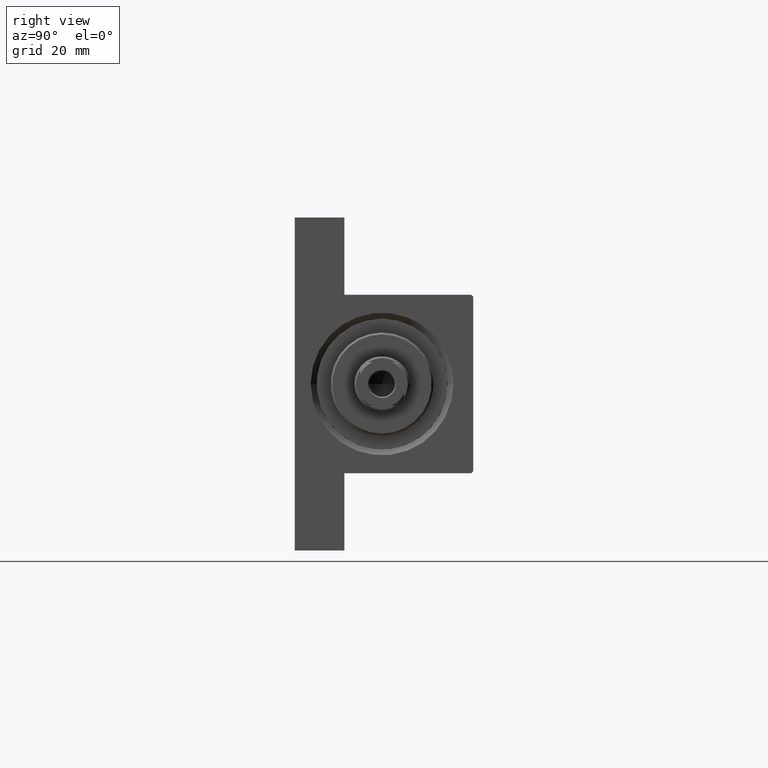
[diagram: clean part render]
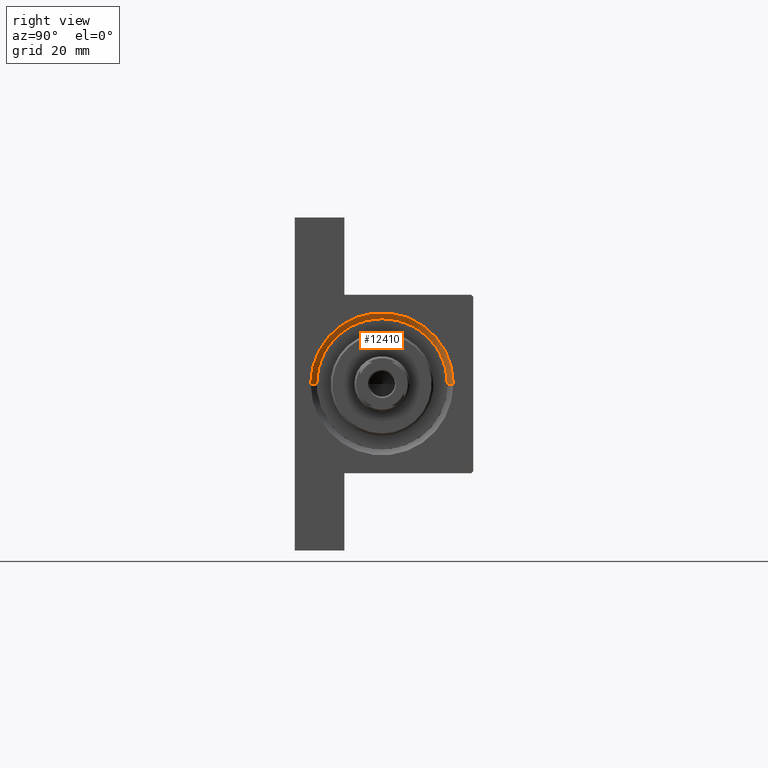
[diagram: same view with one face highlighted and labeled with its STEP entity id]
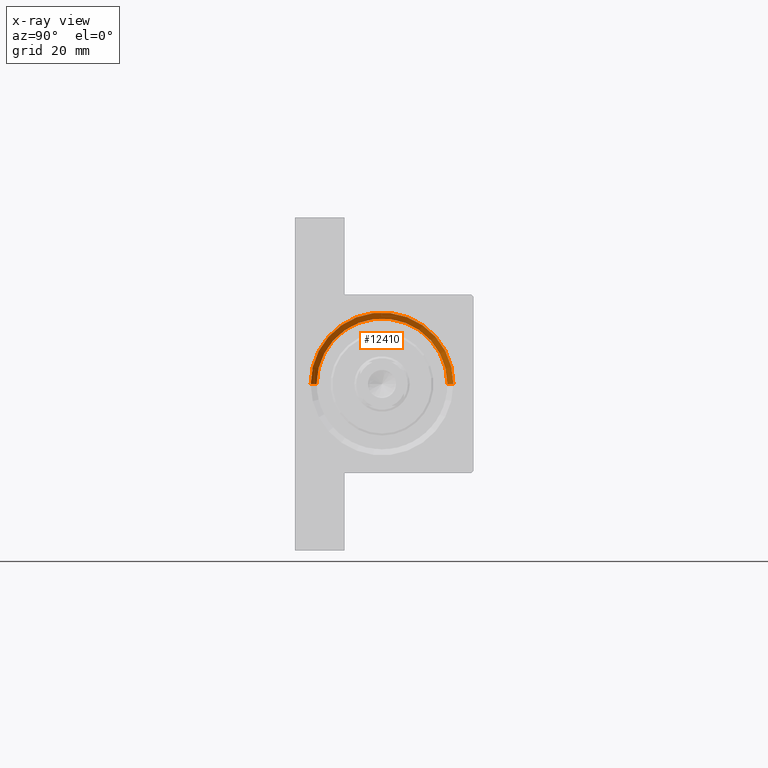
[diagram: x-ray of the same camera — body ghosted, the highlighted face saturated]
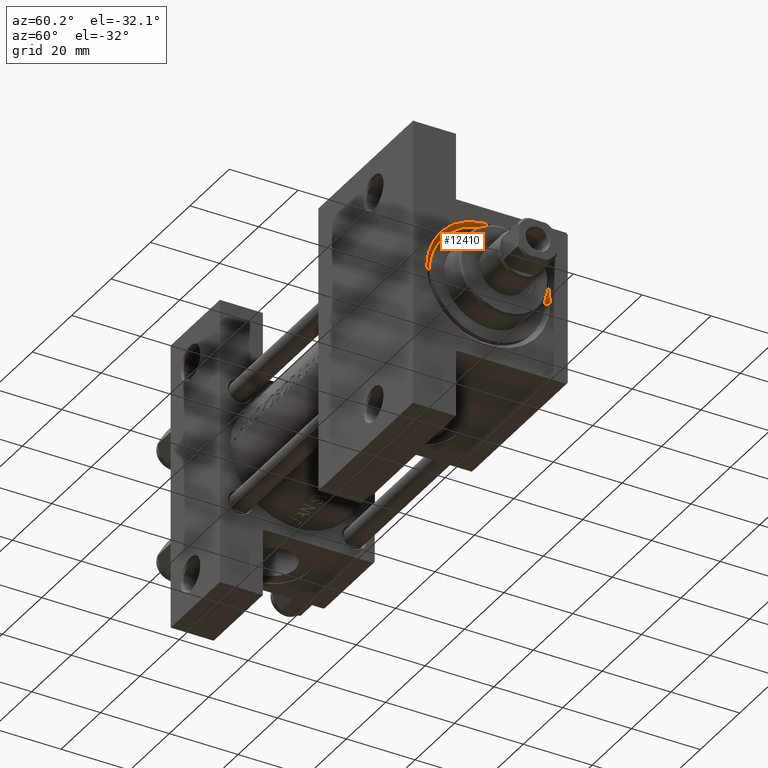
[diagram: same view with one face highlighted and labeled with its STEP entity id]
A machine part, right view. The second image highlights one B-rep face of the part: STEP entity #12410.
The next image is the same camera in x-ray: the body ghosted, the highlighted face saturated — about 0% of this face is hidden behind the body in this view.
A second angle (auxiliary view) of the same face is appended — the face is thin or edge-on in the first view.
In plain terms, the highlighted conical surface has half-angle 45 deg.
Its self-contained STEP definition (entity closure, byte-faithful):
#59 = VERTEX_POINT ( 'NONE', #33970 ) ;
#526 = DIRECTION ( 'NONE',  ( -1.000000000000000000, 0.000000000000000000, -0.000000000000000000 ) ) ;
#766 = DIRECTION ( 'NONE',  ( 0.000000000000000000, 0.000000000000000000, 1.000000000000000000 ) ) ;
#2860 = AXIS2_PLACEMENT_3D ( 'NONE', #35102, #31489, #13209 ) ;
#4650 = EDGE_CURVE ( 'NONE', #59, #45423, #29011, .T. ) ;
#4758 = LINE ( 'NONE', #42019, #37725 ) ;
#6771 = EDGE_CURVE ( 'NONE', #13666, #59, #23607, .T. ) ;
#7118 = DIRECTION ( 'NONE',  ( 0.7071067811865474617, 0.000000000000000000, -0.7071067811865474617 ) ) ;
#7210 = VERTEX_POINT ( 'NONE', #22505 ) ;
#7815 = ORIENTED_EDGE ( 'NONE', *, *, #18359, .T. ) ;
#9940 = DIRECTION ( 'NONE',  ( 1.000000000000000000, 0.000000000000000000, 0.000000000000000000 ) ) ;
#10965 = ORIENTED_EDGE ( 'NONE', *, *, #36043, .F. ) ;
#11729 = CIRCLE ( 'NONE', #17870, 18.00000000000000355 ) ;
#12410 = ADVANCED_FACE ( 'NONE', ( #43780 ), #17627, .F. ) ;
#13209 = DIRECTION ( 'NONE',  ( 0.000000000000000000, 0.000000000000000000, 1.000000000000000000 ) ) ;
#13666 = VERTEX_POINT ( 'NONE', #27223 ) ;
#13824 = AXIS2_PLACEMENT_3D ( 'NONE', #34973, #9940, #31351 ) ;
#15869 = VECTOR ( 'NONE', #7118, 1000.000000000000114 ) ;
#16766 = DIRECTION ( 'NONE',  ( 0.7071067811865474617, 8.659560562354932858E-17, 0.7071067811865474617 ) ) ;
#17627 = CONICAL_SURFACE ( 'NONE', #13824, 16.50000000000000000, 0.7853981633974482790 ) ;
#17870 = AXIS2_PLACEMENT_3D ( 'NONE', #37092, #526, #766 ) ;
#18359 = EDGE_CURVE ( 'NONE', #13666, #7210, #4758, .T. ) ;
#21426 = CARTESIAN_POINT ( 'NONE',  ( 123.0000000000000142, 0.000000000000000000, -18.50000000000000000 ) ) ;
#21723 = EDGE_LOOP ( 'NONE', ( #21967, #7815, #10965, #40815 ) ) ;
#21967 = ORIENTED_EDGE ( 'NONE', *, *, #6771, .F. ) ;
#22505 = CARTESIAN_POINT ( 'NONE',  ( 123.0000000000000142, 2.204364238465235822E-15, 17.50000000000000355 ) ) ;
#23607 = CIRCLE ( 'NONE', #2860, 16.50000000000000000 ) ;
#27223 = CARTESIAN_POINT ( 'NONE',  ( 121.5000000000000142, 2.020667218593133100E-15, 16.00000000000000355 ) ) ;
#29011 = LINE ( 'NONE', #37163, #15869 ) ;
#31351 = DIRECTION ( 'NONE',  ( 0.000000000000000000, 0.000000000000000000, -1.000000000000000000 ) ) ;
#31489 = DIRECTION ( 'NONE',  ( 1.000000000000000000, 0.000000000000000000, 0.000000000000000000 ) ) ;
#33970 = CARTESIAN_POINT ( 'NONE',  ( 121.5000000000000142, 0.000000000000000000, -16.99999999999999645 ) ) ;
#34973 = CARTESIAN_POINT ( 'NONE',  ( 121.5000000000000142, 0.000000000000000000, -0.4999999999999967804 ) ) ;
#35102 = CARTESIAN_POINT ( 'NONE',  ( 121.5000000000000142, 0.000000000000000000, -0.4999999999999967804 ) ) ;
#36043 = EDGE_CURVE ( 'NONE', #45423, #7210, #11729, .T. ) ;
#37092 = CARTESIAN_POINT ( 'NONE',  ( 123.0000000000000142, 0.000000000000000000, -0.4999999999999967804 ) ) ;
#37163 = CARTESIAN_POINT ( 'NONE',  ( 121.5000000000000142, 0.000000000000000000, -16.99999999999999645 ) ) ;
#37725 = VECTOR ( 'NONE', #16766, 1000.000000000000114 ) ;
#40815 = ORIENTED_EDGE ( 'NONE', *, *, #4650, .F. ) ;
#42019 = CARTESIAN_POINT ( 'NONE',  ( 121.5000000000000142, 2.020667218593133100E-15, 16.00000000000000355 ) ) ;
#43780 = FACE_OUTER_BOUND ( 'NONE', #21723, .T. ) ;
#45423 = VERTEX_POINT ( 'NONE', #21426 ) ;